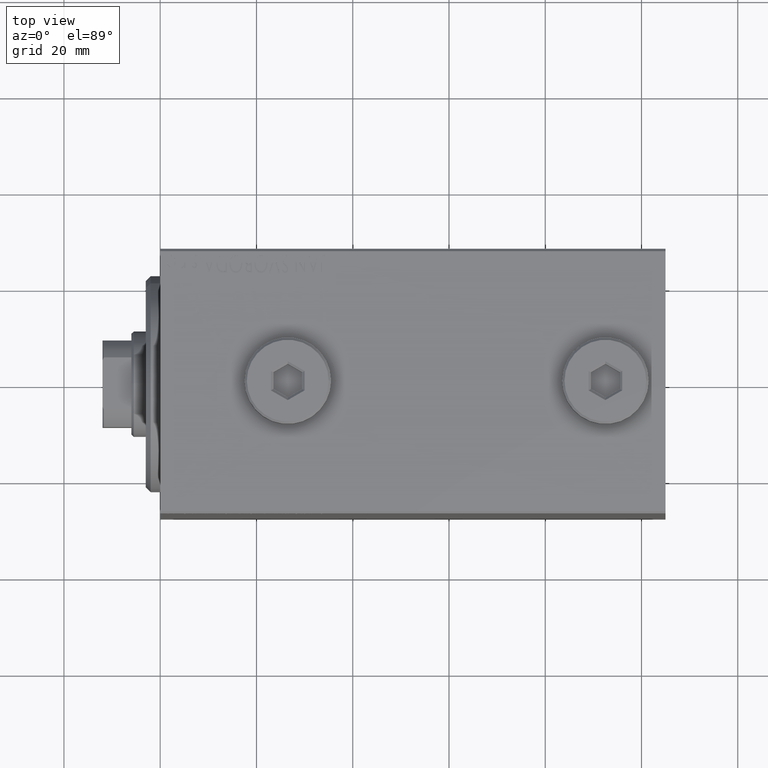
[diagram: clean part render]
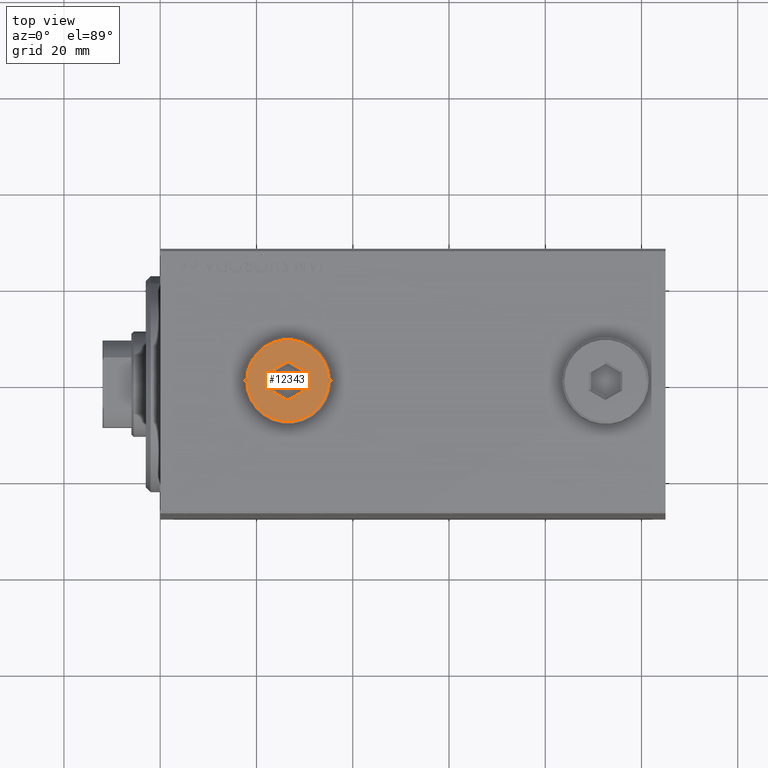
[diagram: same view with one face highlighted and labeled with its STEP entity id]
A machine part, top view. The second image highlights one B-rep face of the part: STEP entity #12343.
In plain terms, the highlighted planar face has unit normal (0, 0, 1).
Its self-contained STEP definition (entity closure, byte-faithful):
#1213 = EDGE_LOOP ( 'NONE', ( #23408, #25395 ) ) ;
#2110 = VECTOR ( 'NONE', #36139, 1000.000000000000000 ) ;
#3029 = ORIENTED_EDGE ( 'NONE', *, *, #14041, .T. ) ;
#4563 = CARTESIAN_POINT ( 'NONE',  ( -8.500000000000010658, 0.000000000000000000, 5.000000000000000000 ) ) ;
#4722 = CARTESIAN_POINT ( 'NONE',  ( -3.250000000000003109, -2.165063509461102598, 5.000000000000000000 ) ) ;
#5301 = CIRCLE ( 'NONE', #30142, 8.500000000000010658 ) ;
#5392 = CARTESIAN_POINT ( 'NONE',  ( 1.590596867181068292E-15, 4.041451884327386779, 5.000000000000000000 ) ) ;
#6426 = AXIS2_PLACEMENT_3D ( 'NONE', #7997, #34962, #25360 ) ;
#6528 = EDGE_CURVE ( 'NONE', #44784, #40212, #42067, .T. ) ;
#7997 = CARTESIAN_POINT ( 'NONE',  ( 0.000000000000000000, 0.000000000000000000, 5.000000000000000000 ) ) ;
#8719 = LINE ( 'NONE', #12380, #2110 ) ;
#9162 = ORIENTED_EDGE ( 'NONE', *, *, #27864, .T. ) ;
#10051 = VECTOR ( 'NONE', #30578, 1000.000000000000000 ) ;
#12343 = ADVANCED_FACE ( 'NONE', ( #18064, #38630 ), #28326, .T. ) ;
#12380 = CARTESIAN_POINT ( 'NONE',  ( -3.500000000000006661, 1.732050807568878081, 5.000000000000000000 ) ) ;
#12727 = CARTESIAN_POINT ( 'NONE',  ( 0.000000000000000000, 0.000000000000000000, 5.000000000000000000 ) ) ;
#14041 = EDGE_CURVE ( 'NONE', #41198, #44784, #25372, .T. ) ;
#14779 = CARTESIAN_POINT ( 'NONE',  ( 3.500000000000006661, -2.020725942163693833, 5.000000000000000000 ) ) ;
#15018 = VECTOR ( 'NONE', #21960, 1000.000000000000000 ) ;
#15921 = CARTESIAN_POINT ( 'NONE',  ( 0.000000000000000000, 0.000000000000000000, 5.000000000000000000 ) ) ;
#16151 = DIRECTION ( 'NONE',  ( 1.000000000000000000, 0.000000000000000000, 0.000000000000000000 ) ) ;
#16645 = CARTESIAN_POINT ( 'NONE',  ( -0.2500000000000027756, 3.897114317029978459, 5.000000000000000000 ) ) ;
#17087 = VECTOR ( 'NONE', #23288, 1000.000000000000000 ) ;
#18064 = FACE_BOUND ( 'NONE', #23785, .T. ) ;
#18141 = AXIS2_PLACEMENT_3D ( 'NONE', #15921, #26194, #16151 ) ;
#18181 = CARTESIAN_POINT ( 'NONE',  ( -3.500000000000006661, 2.020725942163692945, 5.000000000000000000 ) ) ;
#18534 = CARTESIAN_POINT ( 'NONE',  ( 3.250000000000003109, 2.165063509461103042, 5.000000000000000000 ) ) ;
#19189 = CARTESIAN_POINT ( 'NONE',  ( 0.2500000000000027756, -3.897114317029979347, 5.000000000000000000 ) ) ;
#20618 = VECTOR ( 'NONE', #42881, 1000.000000000000114 ) ;
#20892 = ORIENTED_EDGE ( 'NONE', *, *, #44514, .T. ) ;
#21960 = DIRECTION ( 'NONE',  ( 0.000000000000000000, -1.000000000000000000, 0.000000000000000000 ) ) ;
#23288 = DIRECTION ( 'NONE',  ( -0.8660254037844387076, -0.4999999999999998890, 0.000000000000000000 ) ) ;
#23408 = ORIENTED_EDGE ( 'NONE', *, *, #43981, .T. ) ;
#23785 = EDGE_LOOP ( 'NONE', ( #20892, #39346, #3029, #41377, #31396, #9162 ) ) ;
#24176 = CARTESIAN_POINT ( 'NONE',  ( 8.500000000000010658, 1.071565949253934716E-15, 5.000000000000000000 ) ) ;
#25360 = DIRECTION ( 'NONE',  ( 1.000000000000000000, 0.000000000000000000, -0.000000000000000000 ) ) ;
#25372 = LINE ( 'NONE', #18534, #31997 ) ;
#25395 = ORIENTED_EDGE ( 'NONE', *, *, #32288, .T. ) ;
#26194 = DIRECTION ( 'NONE',  ( 0.000000000000000000, 0.000000000000000000, 1.000000000000000000 ) ) ;
#26259 = LINE ( 'NONE', #19189, #17087 ) ;
#26650 = DIRECTION ( 'NONE',  ( 0.000000000000000000, 0.000000000000000000, 1.000000000000000000 ) ) ;
#26871 = DIRECTION ( 'NONE',  ( 1.000000000000000000, 0.000000000000000000, 0.000000000000000000 ) ) ;
#27864 = EDGE_CURVE ( 'NONE', #43730, #34716, #43783, .T. ) ;
#28326 = PLANE ( 'NONE',  #6426 ) ;
#28958 = CARTESIAN_POINT ( 'NONE',  ( 3.500000000000006661, 2.020725942163694722, 5.000000000000000000 ) ) ;
#29030 = DIRECTION ( 'NONE',  ( 0.8660254037844387076, -0.4999999999999998890, 0.000000000000000000 ) ) ;
#29238 = CARTESIAN_POINT ( 'NONE',  ( -1.006139216460143630E-15, -4.041451884327387667, 5.000000000000000000 ) ) ;
#30142 = AXIS2_PLACEMENT_3D ( 'NONE', #12727, #26650, #26871 ) ;
#30578 = DIRECTION ( 'NONE',  ( 0.8660254037844387076, 0.4999999999999998335, 0.000000000000000000 ) ) ;
#30686 = VERTEX_POINT ( 'NONE', #4563 ) ;
#30906 = VERTEX_POINT ( 'NONE', #24176 ) ;
#31169 = VERTEX_POINT ( 'NONE', #18181 ) ;
#31396 = ORIENTED_EDGE ( 'NONE', *, *, #37209, .T. ) ;
#31996 = CARTESIAN_POINT ( 'NONE',  ( 3.500000000000006661, -1.732050807568878303, 5.000000000000000000 ) ) ;
#31997 = VECTOR ( 'NONE', #29030, 1000.000000000000000 ) ;
#32288 = EDGE_CURVE ( 'NONE', #30906, #30686, #5301, .T. ) ;
#34001 = LINE ( 'NONE', #16645, #10051 ) ;
#34716 = VERTEX_POINT ( 'NONE', #39938 ) ;
#34962 = DIRECTION ( 'NONE',  ( 0.000000000000000000, 0.000000000000000000, 1.000000000000000000 ) ) ;
#36139 = DIRECTION ( 'NONE',  ( 0.000000000000000000, 1.000000000000000000, 0.000000000000000000 ) ) ;
#37209 = EDGE_CURVE ( 'NONE', #40212, #43730, #26259, .T. ) ;
#37844 = CIRCLE ( 'NONE', #18141, 8.500000000000010658 ) ;
#38630 = FACE_OUTER_BOUND ( 'NONE', #1213, .T. ) ;
#39346 = ORIENTED_EDGE ( 'NONE', *, *, #41039, .T. ) ;
#39938 = CARTESIAN_POINT ( 'NONE',  ( -3.500000000000006661, -2.020725942163694278, 5.000000000000000000 ) ) ;
#40212 = VERTEX_POINT ( 'NONE', #14779 ) ;
#41039 = EDGE_CURVE ( 'NONE', #31169, #41198, #34001, .T. ) ;
#41198 = VERTEX_POINT ( 'NONE', #5392 ) ;
#41377 = ORIENTED_EDGE ( 'NONE', *, *, #6528, .T. ) ;
#42067 = LINE ( 'NONE', #31996, #15018 ) ;
#42881 = DIRECTION ( 'NONE',  ( -0.8660254037844385966, 0.4999999999999999445, 0.000000000000000000 ) ) ;
#43730 = VERTEX_POINT ( 'NONE', #29238 ) ;
#43783 = LINE ( 'NONE', #4722, #20618 ) ;
#43981 = EDGE_CURVE ( 'NONE', #30686, #30906, #37844, .T. ) ;
#44514 = EDGE_CURVE ( 'NONE', #34716, #31169, #8719, .T. ) ;
#44784 = VERTEX_POINT ( 'NONE', #28958 ) ;